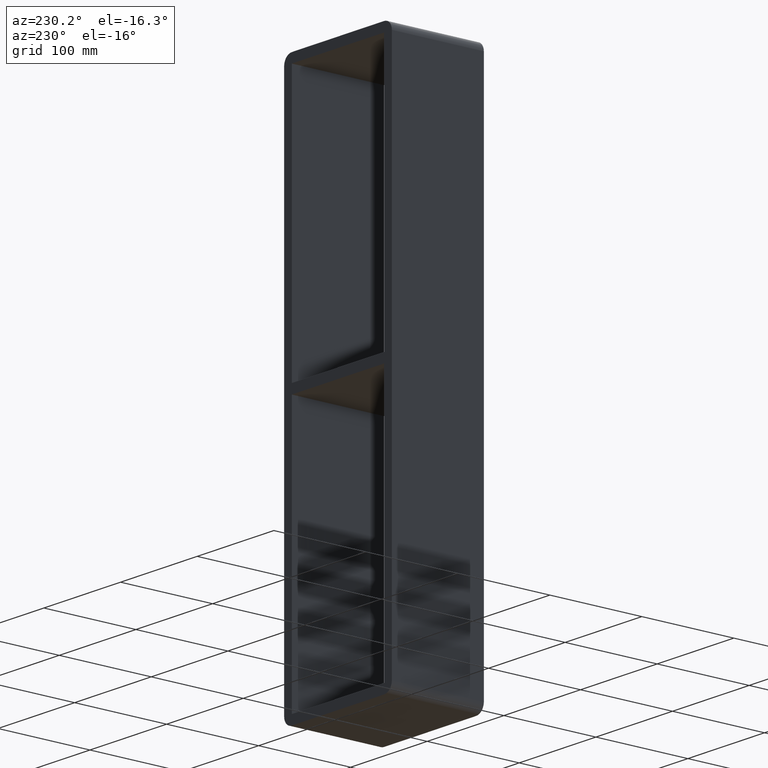
[diagram: clean part render]
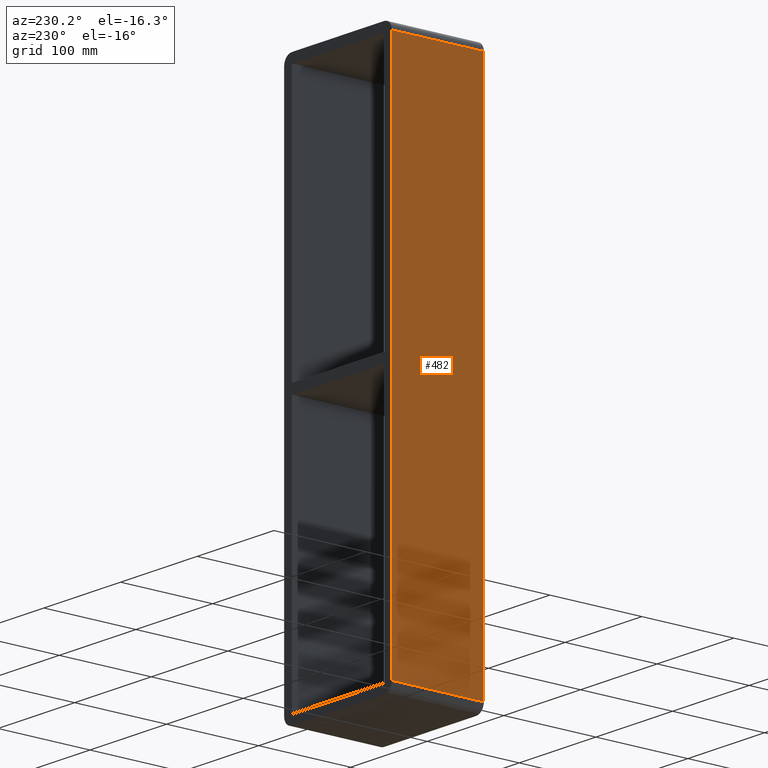
[diagram: same view with one face highlighted and labeled with its STEP entity id]
A machine part, auxiliary view. The second image highlights one B-rep face of the part: STEP entity #482.
In plain terms, the highlighted planar face has unit normal (-1, 0, 0).
Its self-contained STEP definition (entity closure, byte-faithful):
#314=CARTESIAN_POINT('',(-70.25,-3.0,283.0));
#315=VERTEX_POINT('',#314);
#323=CARTESIAN_POINT('',(-70.25,-3.0,-283.00000000000006));
#324=VERTEX_POINT('',#323);
#325=CARTESIAN_POINT('',(-70.25,-3.0,282.99999999999994));
#326=DIRECTION('',(0.0,0.0,-1.0));
#327=VECTOR('',#326,566.0);
#328=LINE('',#325,#327);
#329=EDGE_CURVE('',#315,#324,#328,.T.);
#432=CARTESIAN_POINT('',(-70.25,97.0,-283.00000000000006));
#433=VERTEX_POINT('',#432);
#450=CARTESIAN_POINT('',(-70.25,-3.0,-283.00000000000006));
#451=DIRECTION('',(0.0,1.0,0.0));
#452=VECTOR('',#451,100.0);
#453=LINE('',#450,#452);
#454=EDGE_CURVE('',#324,#433,#453,.T.);
#459=CARTESIAN_POINT('',(-70.25,0.0,-293.00000000000006));
#460=DIRECTION('',(-1.0,0.0,0.0));
#461=DIRECTION('',(0.0,0.0,1.0));
#462=AXIS2_PLACEMENT_3D('',#459,#460,#461);
#463=PLANE('',#462);
#464=ORIENTED_EDGE('',*,*,#454,.F.);
#465=ORIENTED_EDGE('',*,*,#329,.F.);
#466=CARTESIAN_POINT('',(-70.25,97.0,283.0));
#467=VERTEX_POINT('',#466);
#468=CARTESIAN_POINT('',(-70.25,97.0,283.0));
#469=DIRECTION('',(0.0,-1.0,0.0));
#470=VECTOR('',#469,100.0);
#471=LINE('',#468,#470);
#472=EDGE_CURVE('',#467,#315,#471,.T.);
#473=ORIENTED_EDGE('',*,*,#472,.F.);
#474=CARTESIAN_POINT('',(-70.25,97.0,-283.00000000000006));
#475=DIRECTION('',(0.0,0.0,1.0));
#476=VECTOR('',#475,566.0);
#477=LINE('',#474,#476);
#478=EDGE_CURVE('',#433,#467,#477,.T.);
#479=ORIENTED_EDGE('',*,*,#478,.F.);
#480=EDGE_LOOP('',(#464,#465,#473,#479));
#481=FACE_OUTER_BOUND('',#480,.T.);
#482=ADVANCED_FACE('',(#481),#463,.T.);